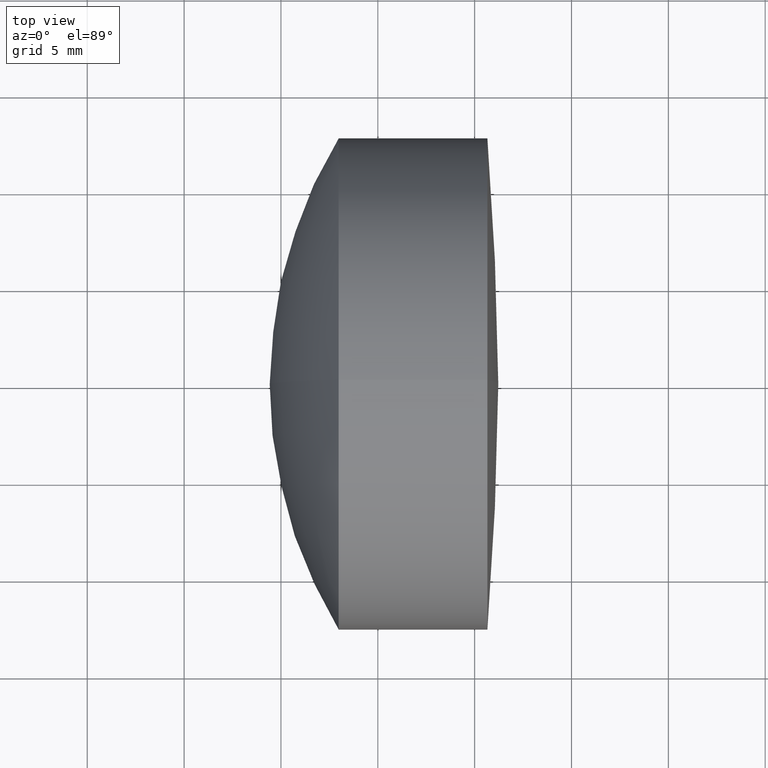
[diagram: clean part render]
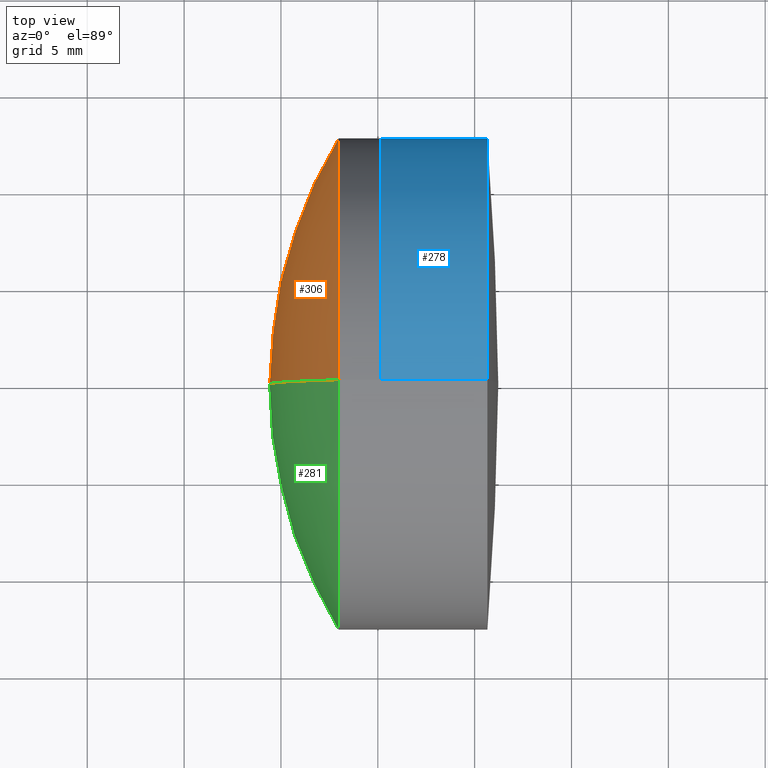
[diagram: same view with three faces highlighted in distinct colors, each labeled with its STEP entity id]
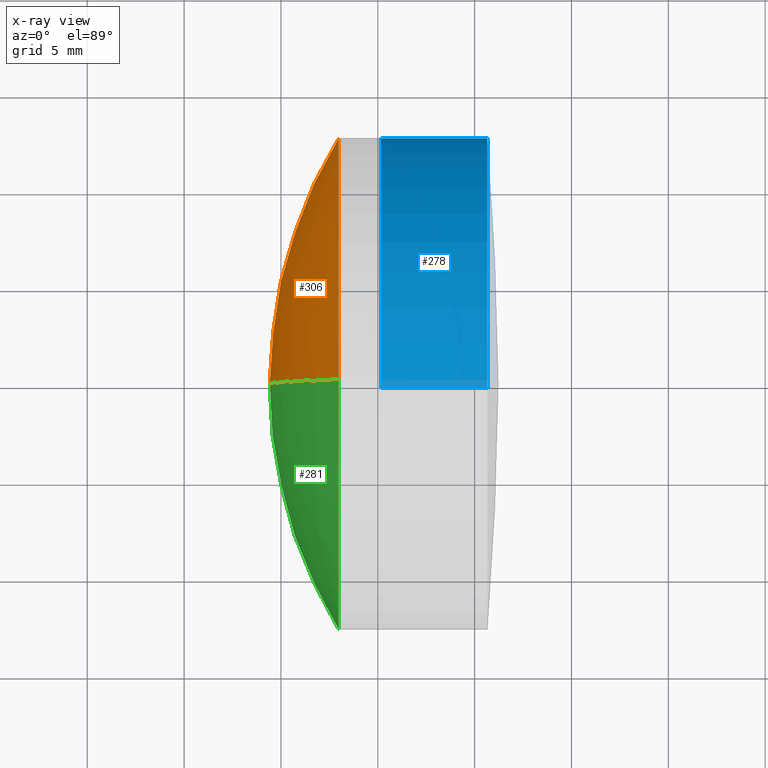
[diagram: x-ray of the same camera — body ghosted, the three highlighted faces saturated]
A machine part, top view with three faces highlighted in distinct colors.
The next image is the same camera in x-ray (body ghosted, the three faces saturated) — at least one of them is partly hidden behind the body in this view.
Their STEP definitions:

[orange] entity #306 — the highlighted spherical surface has radius 24.43 mm.
#5 = ORIENTED_EDGE ( 'NONE', *, *, #297, .T. ) ;
#6 = VERTEX_POINT ( 'NONE', #286 ) ;
#38 = DIRECTION ( 'NONE',  ( -0.0000000000000000000, 1.000000000000000000, 1.224646799147353200E-016 ) ) ;
#67 = EDGE_CURVE ( 'NONE', #6, #135, #181, .T. ) ;
#80 = DIRECTION ( 'NONE',  ( 0.0000000000000000000, 0.0000000000000000000, -1.000000000000000000 ) ) ;
#120 = VERTEX_POINT ( 'NONE', #269 ) ;
#121 = CARTESIAN_POINT ( 'NONE',  ( 43.85023858577233100, 0.0000000000000000000, -2.979725173126728300E-016 ) ) ;
#135 = VERTEX_POINT ( 'NONE', #224 ) ;
#138 = EDGE_CURVE ( 'NONE', #120, #135, #252, .T. ) ;
#153 = DIRECTION ( 'NONE',  ( 0.0000000000000000000, 1.000000000000000000, 0.0000000000000000000 ) ) ;
#155 = CIRCLE ( 'NONE', #194, 12.69999999999999900 ) ;
#158 = DIRECTION ( 'NONE',  ( 0.0000000000000000000, -1.224646799147353200E-016, 1.000000000000000000 ) ) ;
#161 = FACE_OUTER_BOUND ( 'NONE', #196, .T. ) ;
#181 = CIRCLE ( 'NONE', #243, 24.42999999999999600 ) ;
#194 = AXIS2_PLACEMENT_3D ( 'NONE', #261, #233, #270 ) ;
#196 = EDGE_LOOP ( 'NONE', ( #5, #342, #294 ) ) ;
#201 = DIRECTION ( 'NONE',  ( 0.0000000000000000000, -1.000000000000000000, 0.0000000000000000000 ) ) ;
#204 = DIRECTION ( 'NONE',  ( 0.0000000000000000000, 0.0000000000000000000, 1.000000000000000000 ) ) ;
#224 = CARTESIAN_POINT ( 'NONE',  ( 19.42023858577233500, 0.0000000000000000000, 1.197933547845818900E-015 ) ) ;
#233 = DIRECTION ( 'NONE',  ( -1.000000000000000000, -0.0000000000000000000, -0.0000000000000000000 ) ) ;
#237 = SPHERICAL_SURFACE ( 'NONE', #248, 24.42999999999999600 ) ;
#243 = AXIS2_PLACEMENT_3D ( 'NONE', #312, #38, #158 ) ;
#248 = AXIS2_PLACEMENT_3D ( 'NONE', #121, #153, #204 ) ;
#252 = CIRCLE ( 'NONE', #313, 24.42999999999999600 ) ;
#261 = CARTESIAN_POINT ( 'NONE',  ( 22.98076566478077600, 0.0000000000000000000, 0.0000000000000000000 ) ) ;
#269 = CARTESIAN_POINT ( 'NONE',  ( 22.98076566478077300, 0.0000000000000000000, 12.69999999999999900 ) ) ;
#270 = DIRECTION ( 'NONE',  ( 0.0000000000000000000, 0.0000000000000000000, 1.000000000000000000 ) ) ;
#271 = CARTESIAN_POINT ( 'NONE',  ( 43.85023858577233100, 0.0000000000000000000, -2.979725173126728300E-016 ) ) ;
#286 = CARTESIAN_POINT ( 'NONE',  ( 22.98076566478077300, 1.555301434917138400E-015, -12.69999999999999900 ) ) ;
#294 = ORIENTED_EDGE ( 'NONE', *, *, #138, .F. ) ;
#297 = EDGE_CURVE ( 'NONE', #120, #6, #155, .T. ) ;
#306 = ADVANCED_FACE ( 'NONE', ( #161 ), #237, .T. ) ;
#312 = CARTESIAN_POINT ( 'NONE',  ( 43.85023858577233100, 0.0000000000000000000, -2.979725173126728300E-016 ) ) ;
#313 = AXIS2_PLACEMENT_3D ( 'NONE', #271, #201, #80 ) ;
#342 = ORIENTED_EDGE ( 'NONE', *, *, #67, .T. ) ;

[blue] entity #278 — the highlighted cylindrical surface (partial cylindrical patch) has radius 12.7 mm, axis along (-1, -0, -0).
#2 = ORIENTED_EDGE ( 'NONE', *, *, #11, .T. ) ;
#11 = EDGE_CURVE ( 'NONE', #28, #26, #267, .T. ) ;
#14 = ORIENTED_EDGE ( 'NONE', *, *, #148, .F. ) ;
#26 = VERTEX_POINT ( 'NONE', #223 ) ;
#28 = VERTEX_POINT ( 'NONE', #254 ) ;
#30 = DIRECTION ( 'NONE',  ( -1.000000000000000000, -0.0000000000000000000, -0.0000000000000000000 ) ) ;
#46 = VERTEX_POINT ( 'NONE', #89 ) ;
#48 = CARTESIAN_POINT ( 'NONE',  ( 25.16764040434280100, -1.555301434917138400E-015, 12.69999999999999900 ) ) ;
#54 = DIRECTION ( 'NONE',  ( 0.0000000000000000000, 0.0000000000000000000, 1.000000000000000000 ) ) ;
#69 = VECTOR ( 'NONE', #116, 1000.000000000000000 ) ;
#72 = CARTESIAN_POINT ( 'NONE',  ( -0.5519199926577972300, 1.555301434917138200E-015, -12.69999999999999800 ) ) ;
#89 = CARTESIAN_POINT ( 'NONE',  ( 30.65879745129665300, -1.555301434917133500E-015, 12.69999999999995800 ) ) ;
#110 = EDGE_CURVE ( 'NONE', #46, #28, #165, .T. ) ;
#112 = LINE ( 'NONE', #322, #166 ) ;
#116 = DIRECTION ( 'NONE',  ( -1.000000000000000000, -0.0000000000000000000, -0.0000000000000000000 ) ) ;
#127 = DIRECTION ( 'NONE',  ( 0.0000000000000000000, 0.0000000000000000000, 1.000000000000000000 ) ) ;
#134 = AXIS2_PLACEMENT_3D ( 'NONE', #332, #242, #335 ) ;
#147 = EDGE_LOOP ( 'NONE', ( #258, #2, #273, #14 ) ) ;
#148 = EDGE_CURVE ( 'NONE', #46, #338, #112, .T. ) ;
#152 = AXIS2_PLACEMENT_3D ( 'NONE', #309, #330, #54 ) ;
#165 = CIRCLE ( 'NONE', #152, 12.69999999999999800 ) ;
#166 = VECTOR ( 'NONE', #241, 1000.000000000000000 ) ;
#171 = AXIS2_PLACEMENT_3D ( 'NONE', #185, #30, #127 ) ;
#185 = CARTESIAN_POINT ( 'NONE',  ( 25.16764040434280100, 0.0000000000000000000, 0.0000000000000000000 ) ) ;
#223 = CARTESIAN_POINT ( 'NONE',  ( 25.16764040434280100, 0.0000000000000000000, -12.69999999999999900 ) ) ;
#241 = DIRECTION ( 'NONE',  ( -1.000000000000000000, -0.0000000000000000000, -0.0000000000000000000 ) ) ;
#242 = DIRECTION ( 'NONE',  ( -1.000000000000000000, -0.0000000000000000000, -0.0000000000000000000 ) ) ;
#244 = CIRCLE ( 'NONE', #171, 12.69999999999999800 ) ;
#250 = EDGE_CURVE ( 'NONE', #338, #26, #244, .T. ) ;
#254 = CARTESIAN_POINT ( 'NONE',  ( 30.65879745129665300, 0.0000000000000000000, -12.69999999999995800 ) ) ;
#258 = ORIENTED_EDGE ( 'NONE', *, *, #110, .T. ) ;
#267 = LINE ( 'NONE', #72, #69 ) ;
#272 = CYLINDRICAL_SURFACE ( 'NONE', #134, 12.69999999999999800 ) ;
#273 = ORIENTED_EDGE ( 'NONE', *, *, #250, .F. ) ;
#278 = ADVANCED_FACE ( 'NONE', ( #321 ), #272, .T. ) ;
#309 = CARTESIAN_POINT ( 'NONE',  ( 30.65879745129665000, 0.0000000000000000000, 0.0000000000000000000 ) ) ;
#321 = FACE_OUTER_BOUND ( 'NONE', #147, .T. ) ;
#322 = CARTESIAN_POINT ( 'NONE',  ( -0.5519199926577972300, 0.0000000000000000000, 12.69999999999999800 ) ) ;
#330 = DIRECTION ( 'NONE',  ( -1.000000000000000000, -0.0000000000000000000, -0.0000000000000000000 ) ) ;
#332 = CARTESIAN_POINT ( 'NONE',  ( -0.5519199926577972300, 0.0000000000000000000, 0.0000000000000000000 ) ) ;
#335 = DIRECTION ( 'NONE',  ( 0.0000000000000000000, 0.0000000000000000000, 1.000000000000000000 ) ) ;
#338 = VERTEX_POINT ( 'NONE', #48 ) ;

[green] entity #281 — the highlighted spherical surface has radius 24.43 mm.
#3 = CARTESIAN_POINT ( 'NONE',  ( 43.85023858577233100, 0.0000000000000000000, -2.979725173126728300E-016 ) ) ;
#4 = ORIENTED_EDGE ( 'NONE', *, *, #292, .T. ) ;
#6 = VERTEX_POINT ( 'NONE', #286 ) ;
#7 = FACE_OUTER_BOUND ( 'NONE', #317, .T. ) ;
#16 = AXIS2_PLACEMENT_3D ( 'NONE', #3, #290, #70 ) ;
#38 = DIRECTION ( 'NONE',  ( -0.0000000000000000000, 1.000000000000000000, 1.224646799147353200E-016 ) ) ;
#47 = ORIENTED_EDGE ( 'NONE', *, *, #138, .T. ) ;
#67 = EDGE_CURVE ( 'NONE', #6, #135, #181, .T. ) ;
#70 = DIRECTION ( 'NONE',  ( 0.0000000000000000000, 0.0000000000000000000, 1.000000000000000000 ) ) ;
#80 = DIRECTION ( 'NONE',  ( 0.0000000000000000000, 0.0000000000000000000, -1.000000000000000000 ) ) ;
#101 = DIRECTION ( 'NONE',  ( -1.000000000000000000, -0.0000000000000000000, -0.0000000000000000000 ) ) ;
#118 = ORIENTED_EDGE ( 'NONE', *, *, #67, .F. ) ;
#120 = VERTEX_POINT ( 'NONE', #269 ) ;
#135 = VERTEX_POINT ( 'NONE', #224 ) ;
#138 = EDGE_CURVE ( 'NONE', #120, #135, #252, .T. ) ;
#158 = DIRECTION ( 'NONE',  ( 0.0000000000000000000, -1.224646799147353200E-016, 1.000000000000000000 ) ) ;
#181 = CIRCLE ( 'NONE', #243, 24.42999999999999600 ) ;
#199 = SPHERICAL_SURFACE ( 'NONE', #16, 24.42999999999999600 ) ;
#201 = DIRECTION ( 'NONE',  ( 0.0000000000000000000, -1.000000000000000000, 0.0000000000000000000 ) ) ;
#205 = DIRECTION ( 'NONE',  ( 0.0000000000000000000, 0.0000000000000000000, 1.000000000000000000 ) ) ;
#214 = CARTESIAN_POINT ( 'NONE',  ( 22.98076566478077600, 0.0000000000000000000, 0.0000000000000000000 ) ) ;
#224 = CARTESIAN_POINT ( 'NONE',  ( 19.42023858577233500, 0.0000000000000000000, 1.197933547845818900E-015 ) ) ;
#243 = AXIS2_PLACEMENT_3D ( 'NONE', #312, #38, #158 ) ;
#252 = CIRCLE ( 'NONE', #313, 24.42999999999999600 ) ;
#269 = CARTESIAN_POINT ( 'NONE',  ( 22.98076566478077300, 0.0000000000000000000, 12.69999999999999900 ) ) ;
#271 = CARTESIAN_POINT ( 'NONE',  ( 43.85023858577233100, 0.0000000000000000000, -2.979725173126728300E-016 ) ) ;
#281 = ADVANCED_FACE ( 'NONE', ( #7 ), #199, .T. ) ;
#286 = CARTESIAN_POINT ( 'NONE',  ( 22.98076566478077300, 1.555301434917138400E-015, -12.69999999999999900 ) ) ;
#290 = DIRECTION ( 'NONE',  ( 0.0000000000000000000, 1.000000000000000000, 0.0000000000000000000 ) ) ;
#292 = EDGE_CURVE ( 'NONE', #6, #120, #314, .T. ) ;
#296 = AXIS2_PLACEMENT_3D ( 'NONE', #214, #101, #205 ) ;
#312 = CARTESIAN_POINT ( 'NONE',  ( 43.85023858577233100, 0.0000000000000000000, -2.979725173126728300E-016 ) ) ;
#313 = AXIS2_PLACEMENT_3D ( 'NONE', #271, #201, #80 ) ;
#314 = CIRCLE ( 'NONE', #296, 12.69999999999999900 ) ;
#317 = EDGE_LOOP ( 'NONE', ( #118, #4, #47 ) ) ;